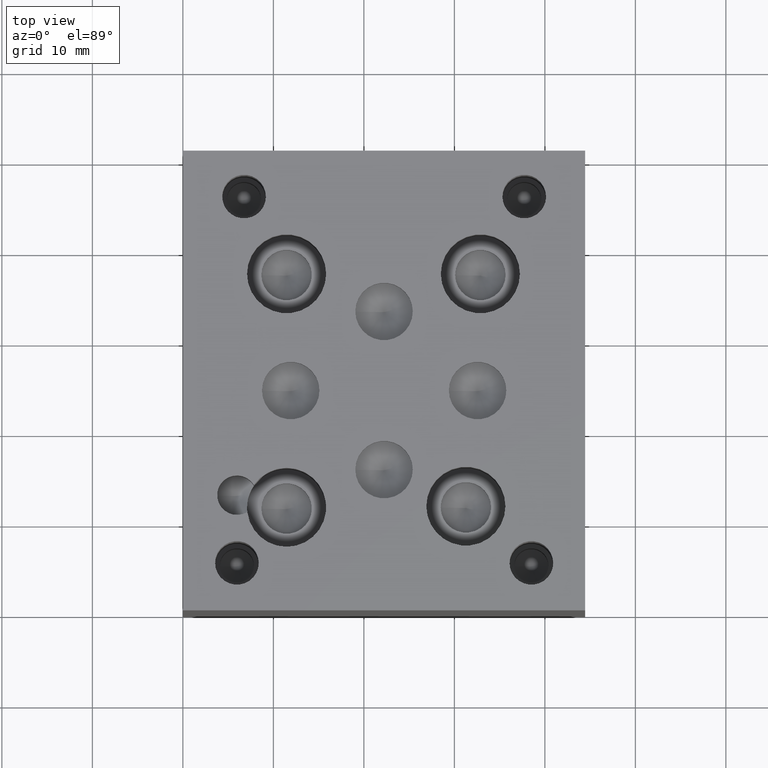
[diagram: clean part render]
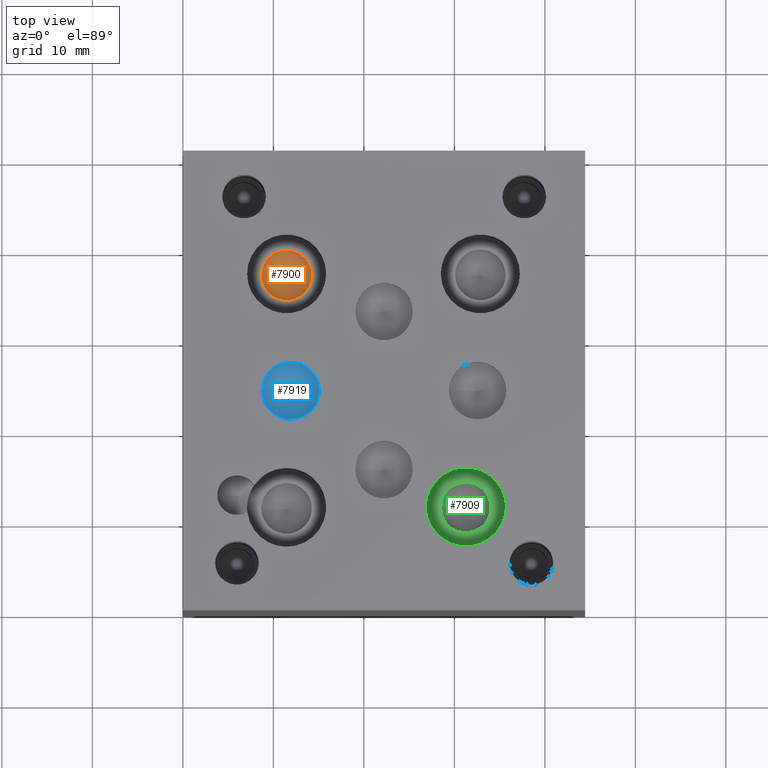
[diagram: same view with three faces highlighted in distinct colors, each labeled with its STEP entity id]
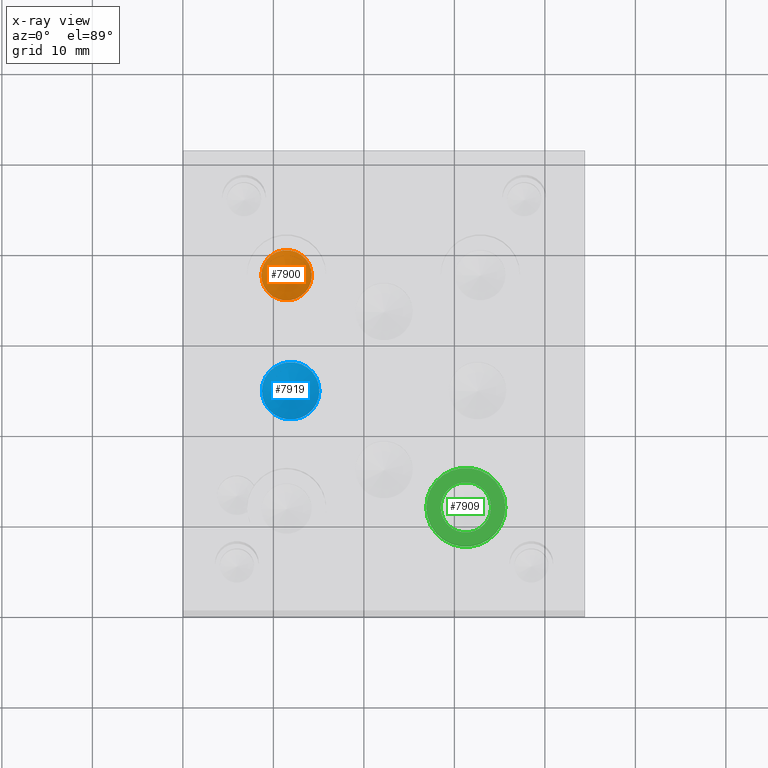
[diagram: x-ray of the same camera — body ghosted, the three highlighted faces saturated]
A machine part, top view with three faces highlighted in distinct colors.
The next image is the same camera in x-ray (body ghosted, the three faces saturated) — at least one of them is partly hidden behind the body in this view.
Their STEP definitions:

[orange] entity #7900 — the highlighted conical surface has half-angle 60 deg.
#22=CONICAL_SURFACE('',#8283,1.39065,1.0471975511966);
#79=CIRCLE('',#8284,2.7813);
#80=CIRCLE('',#8285,2.7813);
#821=FACE_OUTER_BOUND('',#1252,.T.);
#1252=EDGE_LOOP('',(#6698,#6699,#6700,#6701));
#2101=LINE('',#13047,#2917);
#2917=VECTOR('',#9826,1.39065);
#3614=VERTEX_POINT('',#13043);
#3615=VERTEX_POINT('',#13044);
#3616=VERTEX_POINT('',#13046);
#4672=EDGE_CURVE('',#3614,#3615,#79,.T.);
#4673=EDGE_CURVE('',#3615,#3616,#2101,.T.);
#4674=EDGE_CURVE('',#3615,#3614,#80,.T.);
#6698=ORIENTED_EDGE('',*,*,#4672,.T.);
#6699=ORIENTED_EDGE('',*,*,#4673,.T.);
#6700=ORIENTED_EDGE('',*,*,#4673,.F.);
#6701=ORIENTED_EDGE('',*,*,#4674,.T.);
#7900=ADVANCED_FACE('',(#821),#22,.F.);
#8283=AXIS2_PLACEMENT_3D('',#13042,#9822,#9823);
#8284=AXIS2_PLACEMENT_3D('',#13045,#9824,#9825);
#8285=AXIS2_PLACEMENT_3D('',#13048,#9827,#9828);
#9822=DIRECTION('center_axis',(0.,0.,1.));
#9823=DIRECTION('ref_axis',(1.,0.,0.));
#9824=DIRECTION('center_axis',(0.,0.,1.));
#9825=DIRECTION('ref_axis',(1.,0.,0.));
#9826=DIRECTION('',(0.866025403784439,1.06057523872491E-16,-0.5));
#9827=DIRECTION('center_axis',(0.,0.,1.));
#9828=DIRECTION('ref_axis',(1.,0.,0.));
#13042=CARTESIAN_POINT('Origin',(11.4554,37.1856,34.1165278481514));
#13043=CARTESIAN_POINT('',(14.2367,37.1856,34.91942));
#13044=CARTESIAN_POINT('',(8.6741,37.1856,34.91942));
#13045=CARTESIAN_POINT('Origin',(11.4554,37.1856,34.91942));
#13046=CARTESIAN_POINT('',(11.4554,37.1856,33.3136356963029));
#13047=CARTESIAN_POINT('',(10.06475,37.1856,34.1165278481514));
#13048=CARTESIAN_POINT('Origin',(11.4554,37.1856,34.91942));

[blue] entity #7919 — the highlighted conical surface has half-angle 60 deg.
#27=CONICAL_SURFACE('',#8348,1.5875,1.0471975511966);
#125=CIRCLE('',#8349,3.175);
#126=CIRCLE('',#8350,3.175);
#840=FACE_OUTER_BOUND('',#1287,.T.);
#1287=EDGE_LOOP('',(#6811,#6812,#6813,#6814));
#2120=LINE('',#13205,#2936);
#2936=VECTOR('',#9975,1.5875);
#3670=VERTEX_POINT('',#13201);
#3671=VERTEX_POINT('',#13202);
#3672=VERTEX_POINT('',#13204);
#4739=EDGE_CURVE('',#3670,#3671,#125,.T.);
#4740=EDGE_CURVE('',#3671,#3672,#2120,.T.);
#4741=EDGE_CURVE('',#3671,#3670,#126,.T.);
#6811=ORIENTED_EDGE('',*,*,#4739,.T.);
#6812=ORIENTED_EDGE('',*,*,#4740,.T.);
#6813=ORIENTED_EDGE('',*,*,#4740,.F.);
#6814=ORIENTED_EDGE('',*,*,#4741,.T.);
#7919=ADVANCED_FACE('',(#840),#27,.F.);
#8348=AXIS2_PLACEMENT_3D('',#13200,#9971,#9972);
#8349=AXIS2_PLACEMENT_3D('',#13203,#9973,#9974);
#8350=AXIS2_PLACEMENT_3D('',#13206,#9976,#9977);
#9971=DIRECTION('center_axis',(0.,0.,1.));
#9972=DIRECTION('ref_axis',(1.,0.,0.));
#9973=DIRECTION('center_axis',(0.,0.,1.));
#9974=DIRECTION('ref_axis',(1.,0.,0.));
#9975=DIRECTION('',(0.866025403784439,1.06057523872491E-16,-0.5));
#9976=DIRECTION('center_axis',(0.,0.,1.));
#9977=DIRECTION('ref_axis',(1.,0.,0.));
#13200=CARTESIAN_POINT('Origin',(11.9126,24.2824,41.7003664476615));
#13201=CARTESIAN_POINT('',(15.0876,24.2824,42.61691));
#13202=CARTESIAN_POINT('',(8.7376,24.2824,42.61691));
#13203=CARTESIAN_POINT('Origin',(11.9126,24.2824,42.61691));
#13204=CARTESIAN_POINT('',(11.9126,24.2824,40.7838228953229));
#13205=CARTESIAN_POINT('',(10.3251,24.2824,41.7003664476615));
#13206=CARTESIAN_POINT('Origin',(11.9126,24.2824,42.61691));

[green] entity #7909 — the highlighted planar face has unit normal (0, 0, 1).
#94=CIRCLE('',#8308,4.3688);
#95=CIRCLE('',#8309,4.3688);
#96=CIRCLE('',#8310,2.7813);
#220=FACE_BOUND('',#1264,.T.);
#830=FACE_OUTER_BOUND('',#1263,.T.);
#1263=EDGE_LOOP('',(#6741,#6742));
#1264=EDGE_LOOP('',(#6743));
#3636=VERTEX_POINT('',#13116);
#3637=VERTEX_POINT('',#13117);
#3638=VERTEX_POINT('',#13120);
#4698=EDGE_CURVE('',#3636,#3637,#94,.T.);
#4699=EDGE_CURVE('',#3637,#3636,#95,.T.);
#4700=EDGE_CURVE('',#3638,#3638,#96,.T.);
#6741=ORIENTED_EDGE('',*,*,#4698,.T.);
#6742=ORIENTED_EDGE('',*,*,#4699,.T.);
#6743=ORIENTED_EDGE('',*,*,#4700,.F.);
#7218=PLANE('',#8307);
#7909=ADVANCED_FACE('',(#830,#220),#7218,.T.);
#8307=AXIS2_PLACEMENT_3D('',#13115,#9879,#9880);
#8308=AXIS2_PLACEMENT_3D('',#13118,#9881,#9882);
#8309=AXIS2_PLACEMENT_3D('',#13119,#9883,#9884);
#8310=AXIS2_PLACEMENT_3D('',#13121,#9885,#9886);
#9879=DIRECTION('center_axis',(0.,0.,1.));
#9880=DIRECTION('ref_axis',(1.,0.,0.));
#9881=DIRECTION('center_axis',(0.,0.,1.));
#9882=DIRECTION('ref_axis',(1.,0.,0.));
#9883=DIRECTION('center_axis',(0.,0.,1.));
#9884=DIRECTION('ref_axis',(1.,0.,0.));
#9885=DIRECTION('center_axis',(0.,0.,1.));
#9886=DIRECTION('ref_axis',(1.,0.,0.));
#13115=CARTESIAN_POINT('Origin',(31.2674,11.5062,36.5252));
#13116=CARTESIAN_POINT('',(35.6362,11.5062,36.5252));
#13117=CARTESIAN_POINT('',(26.8986,11.5062,36.5252));
#13118=CARTESIAN_POINT('Origin',(31.2674,11.5062,36.5252));
#13119=CARTESIAN_POINT('Origin',(31.2674,11.5062,36.5252));
#13120=CARTESIAN_POINT('',(28.4861,11.5062,36.5252));
#13121=CARTESIAN_POINT('Origin',(31.2674,11.5062,36.5252));